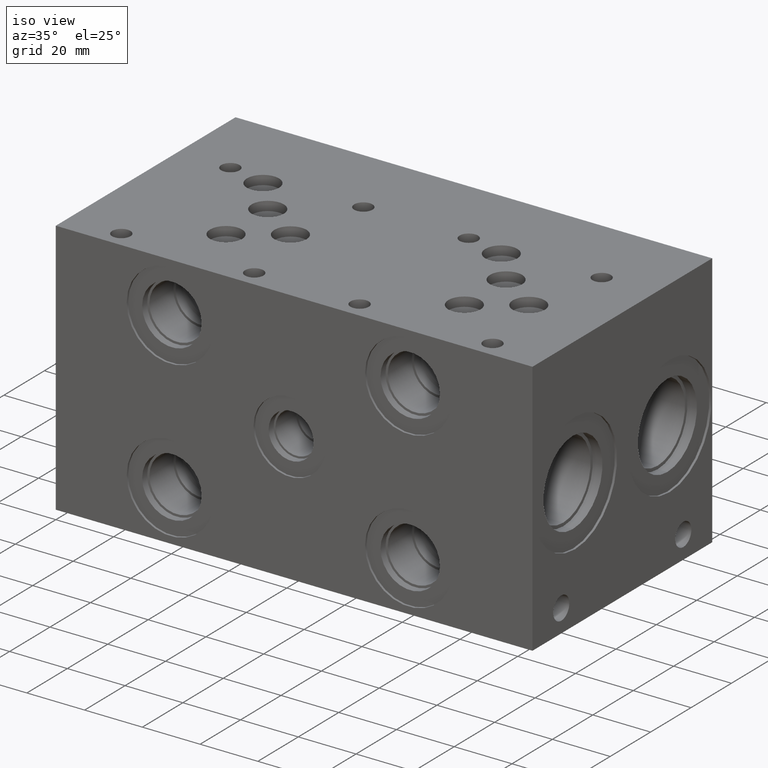
[diagram: clean part render]
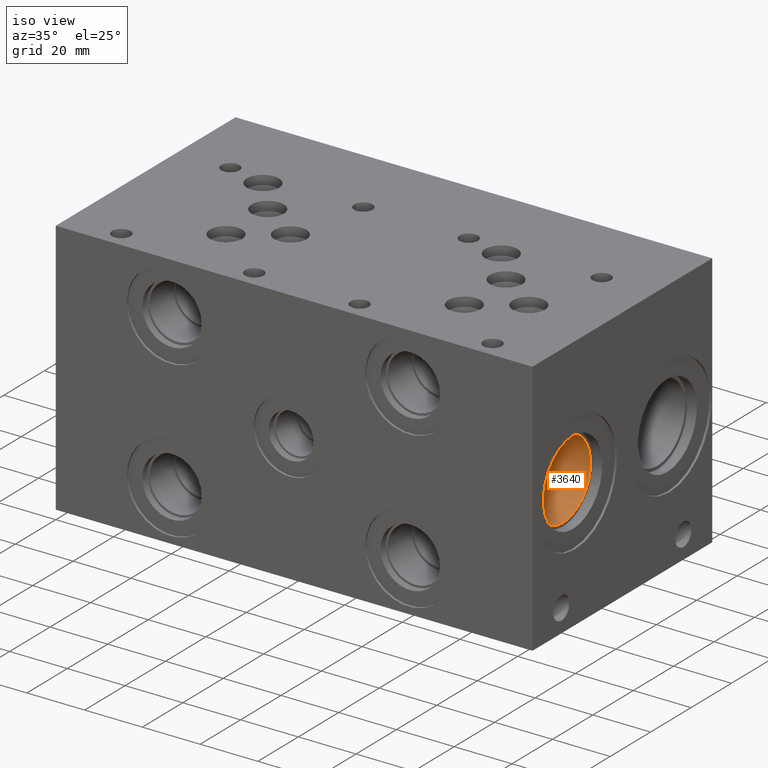
[diagram: same view with one face highlighted and labeled with its STEP entity id]
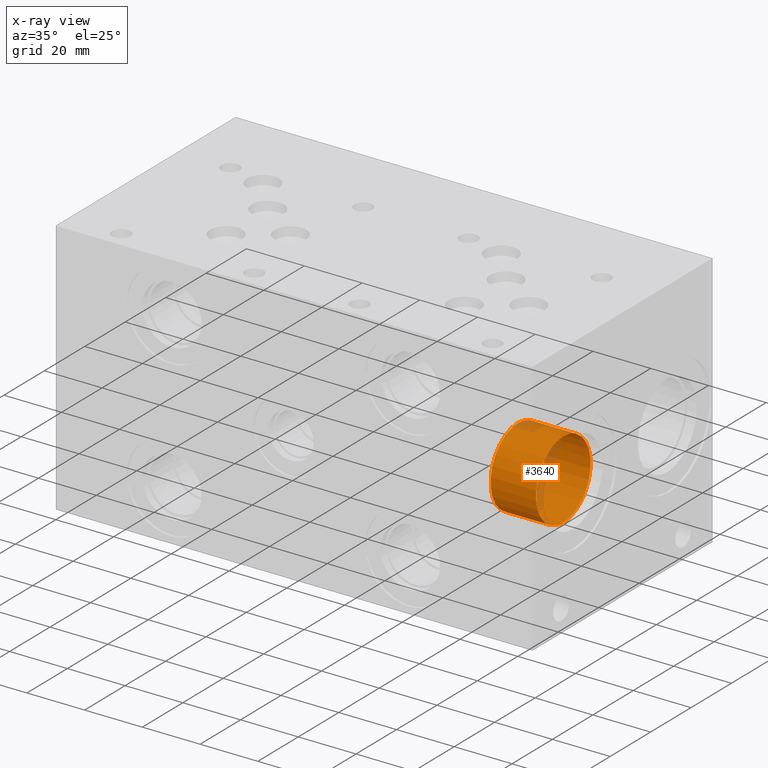
[diagram: x-ray of the same camera — body ghosted, the highlighted face saturated]
A machine part, iso view. The second image highlights one B-rep face of the part: STEP entity #3640.
The next image is the same camera in x-ray: the body ghosted, the highlighted face saturated — about 9% of this face is hidden behind the body in this view.
In plain terms, the highlighted cylindrical surface (bore or boss wall) has radius 13.4937 mm, axis along (-1, 0, 0).
Its self-contained STEP definition (entity closure, byte-faithful):
#3609=CARTESIAN_POINT('',(161.010600000000010,21.081999999999997,30.956249999999997));
#3610=VERTEX_POINT('',#3609);
#3611=CARTESIAN_POINT('',(161.010600000000010,21.081999999999997,44.449999999999996));
#3612=DIRECTION('',(-1.0,0.0,0.0));
#3613=DIRECTION('',(0.0,-1.0,0.0));
#3614=AXIS2_PLACEMENT_3D('',#3611,#3612,#3613);
#3615=CIRCLE('',#3614,13.493749999999999);
#3616=EDGE_CURVE('',#3610,#3610,#3615,.T.);
#3621=CARTESIAN_POINT('',(161.010600000000010,21.081999999999997,44.449999999999996));
#3622=DIRECTION('',(-1.0,0.0,0.0));
#3623=DIRECTION('',(0.0,-1.0,0.0));
#3624=AXIS2_PLACEMENT_3D('',#3621,#3622,#3623);
#3625=CYLINDRICAL_SURFACE('',#3624,13.493749999999999);
#3626=ORIENTED_EDGE('',*,*,#3616,.F.);
#3627=EDGE_LOOP('',(#3626));
#3628=FACE_OUTER_BOUND('',#3627,.T.);
#3629=CARTESIAN_POINT('',(145.262599999999990,21.081999999999997,30.956249999999997));
#3630=VERTEX_POINT('',#3629);
#3631=CARTESIAN_POINT('',(145.262599999999990,21.081999999999997,44.449999999999996));
#3632=DIRECTION('',(-1.0,0.0,0.0));
#3633=DIRECTION('',(0.0,-1.0,0.0));
#3634=AXIS2_PLACEMENT_3D('',#3631,#3632,#3633);
#3635=CIRCLE('',#3634,13.493749999999999);
#3636=EDGE_CURVE('',#3630,#3630,#3635,.T.);
#3637=ORIENTED_EDGE('',*,*,#3636,.T.);
#3638=EDGE_LOOP('',(#3637));
#3639=FACE_BOUND('',#3638,.T.);
#3640=ADVANCED_FACE('',(#3628,#3639),#3625,.F.);